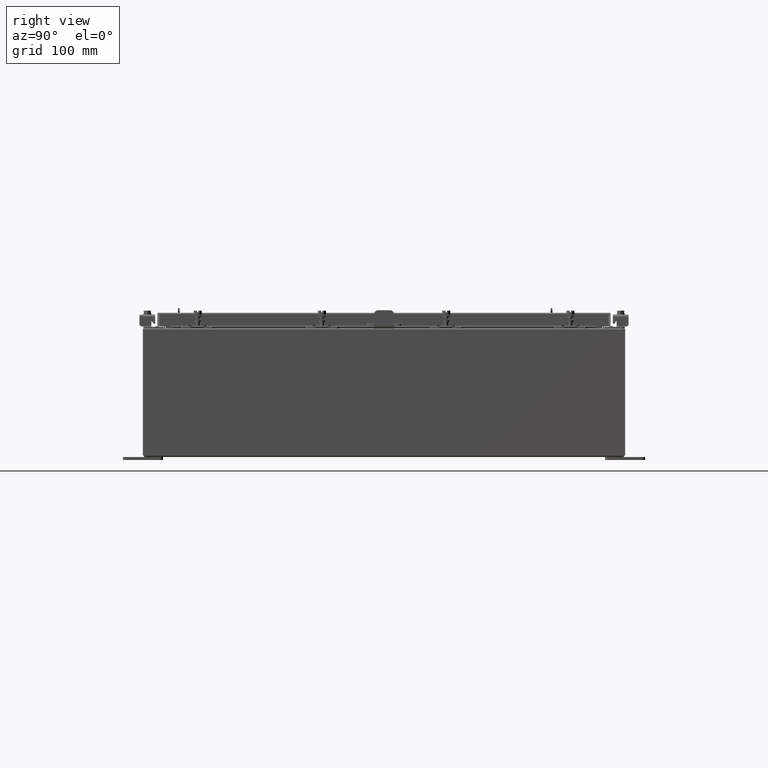
[diagram: clean part render]
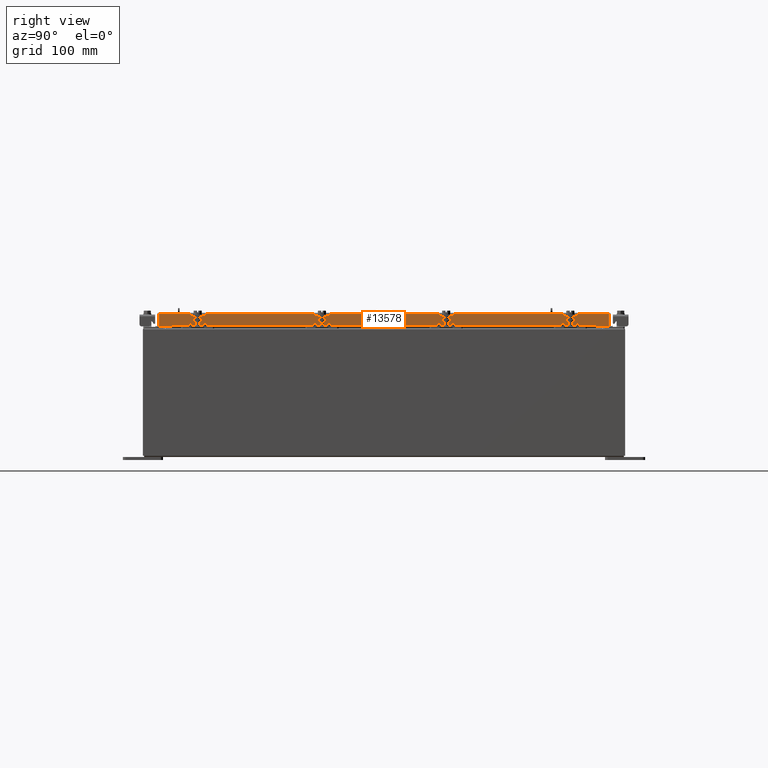
[diagram: same view with one face highlighted and labeled with its STEP entity id]
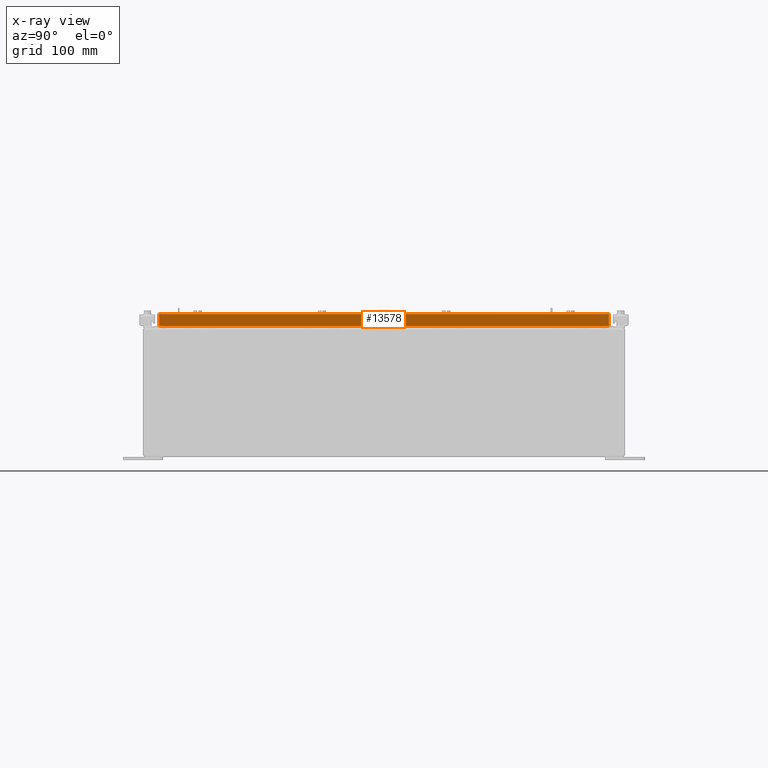
[diagram: x-ray of the same camera — body ghosted, the highlighted face saturated]
A machine part, right view. The second image highlights one B-rep face of the part: STEP entity #13578.
The next image is the same camera in x-ray: the body ghosted, the highlighted face saturated — about 0% of this face is hidden behind the body in this view.
In plain terms, the highlighted planar face has unit normal (1, 0, 0).
Its self-contained STEP definition (entity closure, byte-faithful):
#22 = VERTEX_POINT ( 'NONE', #8596 ) ;
#648 = CARTESIAN_POINT ( 'NONE',  ( 14.09400000000000100, -14.00515786437626400, -0.8499999999999999800 ) ) ;
#891 = LINE ( 'NONE', #22600, #20203 ) ;
#1330 = VERTEX_POINT ( 'NONE', #17519 ) ;
#1458 = VECTOR ( 'NONE', #1695, 39.37007874015748100 ) ;
#1543 = VERTEX_POINT ( 'NONE', #6776 ) ;
#1695 = DIRECTION ( 'NONE',  ( 0.0000000000000000000, -1.000000000000000000, 0.0000000000000000000 ) ) ;
#1896 = LINE ( 'NONE', #7930, #2484 ) ;
#2484 = VECTOR ( 'NONE', #21028, 39.37007874015748100 ) ;
#2529 = DIRECTION ( 'NONE',  ( 0.0000000000000000000, -1.000000000000000000, 0.0000000000000000000 ) ) ;
#3249 = CARTESIAN_POINT ( 'NONE',  ( 14.09399999999999900, -14.00515786437626900, -0.07470000000000015500 ) ) ;
#3381 = ORIENTED_EDGE ( 'NONE', *, *, #17203, .F. ) ;
#3619 = AXIS2_PLACEMENT_3D ( 'NONE', #8991, #22074, #10894 ) ;
#4651 = EDGE_CURVE ( 'NONE', #16596, #5776, #14593, .T. ) ;
#5776 = VERTEX_POINT ( 'NONE', #6848 ) ;
#6690 = EDGE_CURVE ( 'NONE', #12840, #1543, #1896, .T. ) ;
#6694 = DIRECTION ( 'NONE',  ( -2.818880942772360100E-015, -6.982962677686265900E-015, 1.000000000000000000 ) ) ;
#6776 = CARTESIAN_POINT ( 'NONE',  ( 14.09399999999999200, -13.25515786437626400, -0.8500000000000010900 ) ) ;
#6848 = CARTESIAN_POINT ( 'NONE',  ( 14.09399999999999900, -14.00515786437626900, -0.08770000000000026400 ) ) ;
#7033 = ORIENTED_EDGE ( 'NONE', *, *, #4651, .F. ) ;
#7543 = VECTOR ( 'NONE', #6694, 39.37007874015748100 ) ;
#7640 = DIRECTION ( 'NONE',  ( 0.0000000000000000000, -1.000000000000000000, 0.0000000000000000000 ) ) ;
#7930 = CARTESIAN_POINT ( 'NONE',  ( 14.09399999999999200, 13.25515786437627200, -0.8500000000000010900 ) ) ;
#8006 = ORIENTED_EDGE ( 'NONE', *, *, #6690, .F. ) ;
#8554 = ORIENTED_EDGE ( 'NONE', *, *, #14385, .T. ) ;
#8596 = CARTESIAN_POINT ( 'NONE',  ( 14.09400000000000100, 14.00515786437627200, -0.8499999999999999800 ) ) ;
#8991 = CARTESIAN_POINT ( 'NONE',  ( 14.09399999999999900, 0.0000000000000000000, 4.043135030623109600E-014 ) ) ;
#9586 = VECTOR ( 'NONE', #14491, 39.37007874015748100 ) ;
#9621 = CARTESIAN_POINT ( 'NONE',  ( 14.09399999999999200, 13.25515786437627100, -0.8500000000000010900 ) ) ;
#10009 = FACE_OUTER_BOUND ( 'NONE', #19517, .T. ) ;
#10498 = VECTOR ( 'NONE', #2529, 39.37007874015748100 ) ;
#10894 = DIRECTION ( 'NONE',  ( 2.818880942772360100E-015, 0.0000000000000000000, -1.000000000000000000 ) ) ;
#11575 = ORIENTED_EDGE ( 'NONE', *, *, #17349, .T. ) ;
#12251 = ORIENTED_EDGE ( 'NONE', *, *, #14942, .F. ) ;
#12840 = VERTEX_POINT ( 'NONE', #9621 ) ;
#12922 = CARTESIAN_POINT ( 'NONE',  ( 14.09400000000000100, -14.09399999999999900, -0.8499999999999999800 ) ) ;
#13578 = ADVANCED_FACE ( 'NONE', ( #10009 ), #23857, .T. ) ;
#14385 = EDGE_CURVE ( 'NONE', #1330, #5776, #891, .T. ) ;
#14491 = DIRECTION ( 'NONE',  ( -2.818880942772360100E-015, -6.982962677686265900E-015, 1.000000000000000000 ) ) ;
#14593 = LINE ( 'NONE', #3249, #9586 ) ;
#14942 = EDGE_CURVE ( 'NONE', #22, #12840, #15835, .T. ) ;
#15835 = LINE ( 'NONE', #12922, #1458 ) ;
#16596 = VERTEX_POINT ( 'NONE', #648 ) ;
#17203 = EDGE_CURVE ( 'NONE', #1543, #16596, #20428, .T. ) ;
#17349 = EDGE_CURVE ( 'NONE', #22, #1330, #17521, .T. ) ;
#17519 = CARTESIAN_POINT ( 'NONE',  ( 14.09399999999999900, 14.00515786437626500, -0.08770000000000026400 ) ) ;
#17521 = LINE ( 'NONE', #17906, #7543 ) ;
#17906 = CARTESIAN_POINT ( 'NONE',  ( 14.09399999999999900, 14.00515786437626900, 1.376851388806788600E-013 ) ) ;
#19517 = EDGE_LOOP ( 'NONE', ( #7033, #3381, #8006, #12251, #11575, #8554 ) ) ;
#20203 = VECTOR ( 'NONE', #7640, 39.37007874015748100 ) ;
#20428 = LINE ( 'NONE', #21163, #10498 ) ;
#21028 = DIRECTION ( 'NONE',  ( 0.0000000000000000000, -1.000000000000000000, 0.0000000000000000000 ) ) ;
#21163 = CARTESIAN_POINT ( 'NONE',  ( 14.09400000000000100, -14.09399999999999900, -0.8499999999999999800 ) ) ;
#22074 = DIRECTION ( 'NONE',  ( 1.000000000000000000, 0.0000000000000000000, 2.818880942772360100E-015 ) ) ;
#22600 = CARTESIAN_POINT ( 'NONE',  ( 14.09399999999999900, 0.0000000000000000000, -0.08770000000000026400 ) ) ;
#23857 = PLANE ( 'NONE',  #3619 ) ;